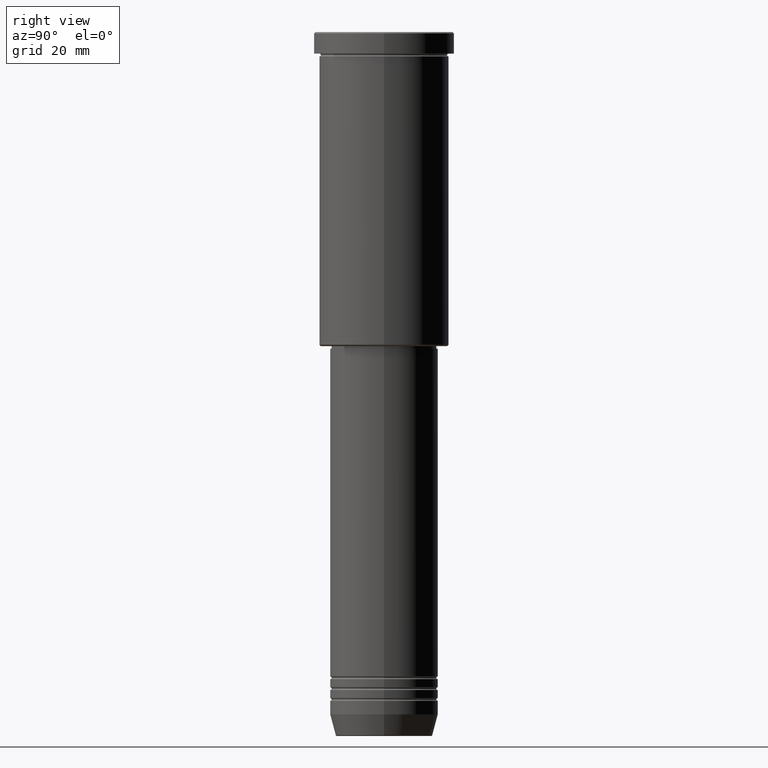
[diagram: clean part render]
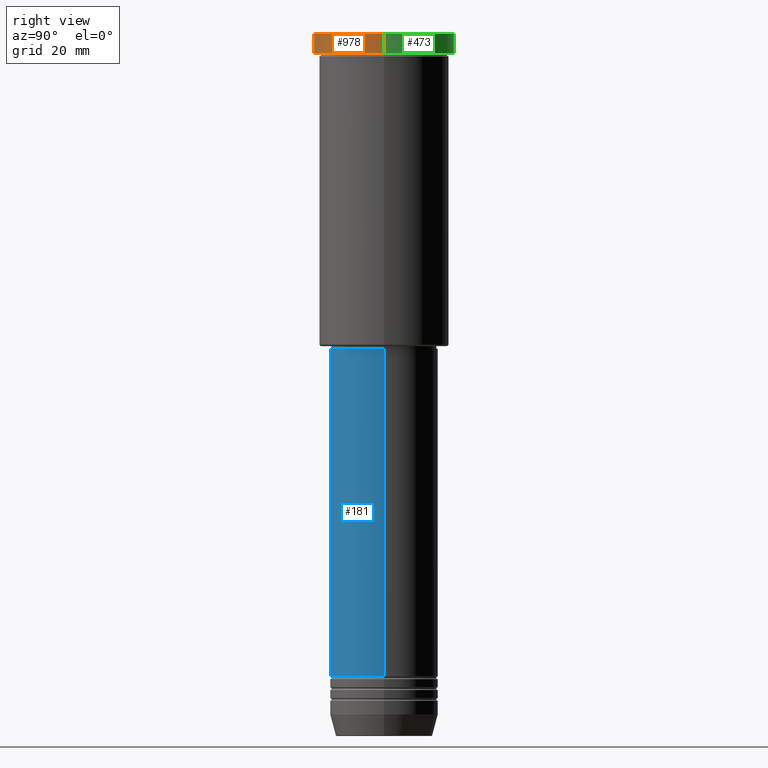
[diagram: same view with three faces highlighted in distinct colors, each labeled with its STEP entity id]
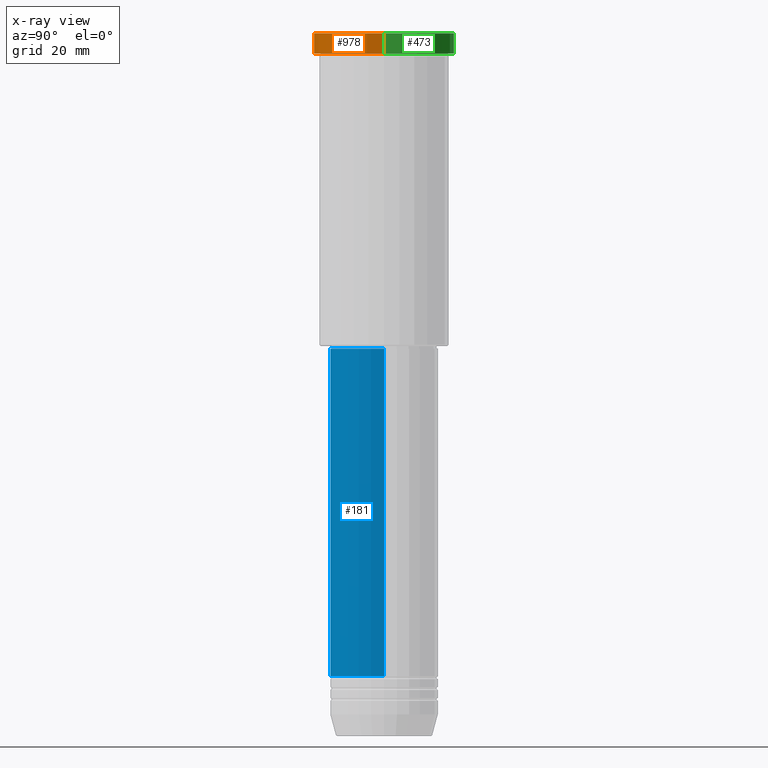
[diagram: x-ray of the same camera — body ghosted, the three highlighted faces saturated]
A machine part, right view with three faces highlighted in distinct colors.
The next image is the same camera in x-ray (body ghosted, the three faces saturated) — at least one of them is partly hidden behind the body in this view.
Their STEP definitions:

[orange] entity #978 — the highlighted cylindrical surface (partial cylindrical patch) has radius 26 mm, axis along (-0, -0, 1).
#15 = CARTESIAN_POINT ( 'NONE',  ( 26.00000000000000000, 0.000000000000000000, 0.000000000000000000 ) ) ;
#18 = VERTEX_POINT ( 'NONE', #1032 ) ;
#81 = DIRECTION ( 'NONE',  ( 1.000000000000000000, 0.000000000000000000, 0.000000000000000000 ) ) ;
#86 = CYLINDRICAL_SURFACE ( 'NONE', #883, 26.00000000000000000 ) ;
#174 = EDGE_CURVE ( 'NONE', #18, #776, #1148, .T. ) ;
#178 = CARTESIAN_POINT ( 'NONE',  ( -26.00000000000000000, 3.184081677783118191E-15, 0.000000000000000000 ) ) ;
#190 = EDGE_CURVE ( 'NONE', #465, #18, #293, .T. ) ;
#273 = DIRECTION ( 'NONE',  ( -0.000000000000000000, -0.000000000000000000, 1.000000000000000000 ) ) ;
#274 = VERTEX_POINT ( 'NONE', #1041 ) ;
#293 = LINE ( 'NONE', #15, #1136 ) ;
#355 = VECTOR ( 'NONE', #811, 1000.000000000000000 ) ;
#362 = EDGE_CURVE ( 'NONE', #274, #465, #863, .T. ) ;
#369 = CARTESIAN_POINT ( 'NONE',  ( 0.000000000000000000, 0.000000000000000000, -7.999999999999992895 ) ) ;
#371 = EDGE_LOOP ( 'NONE', ( #518, #1015, #1172, #423 ) ) ;
#423 = ORIENTED_EDGE ( 'NONE', *, *, #174, .T. ) ;
#440 = LINE ( 'NONE', #178, #355 ) ;
#465 = VERTEX_POINT ( 'NONE', #1003 ) ;
#518 = ORIENTED_EDGE ( 'NONE', *, *, #982, .F. ) ;
#535 = DIRECTION ( 'NONE',  ( -0.000000000000000000, -0.000000000000000000, 1.000000000000000000 ) ) ;
#608 = FACE_OUTER_BOUND ( 'NONE', #371, .T. ) ;
#656 = AXIS2_PLACEMENT_3D ( 'NONE', #793, #706, #1073 ) ;
#670 = CARTESIAN_POINT ( 'NONE',  ( -26.00000000000000000, 3.184081677783118191E-15, -0.5000000000000247580 ) ) ;
#706 = DIRECTION ( 'NONE',  ( 0.000000000000000000, 0.000000000000000000, -1.000000000000000000 ) ) ;
#755 = AXIS2_PLACEMENT_3D ( 'NONE', #369, #535, #819 ) ;
#776 = VERTEX_POINT ( 'NONE', #670 ) ;
#793 = CARTESIAN_POINT ( 'NONE',  ( 0.000000000000000000, 0.000000000000000000, -0.5000000000000247580 ) ) ;
#811 = DIRECTION ( 'NONE',  ( -0.000000000000000000, -0.000000000000000000, 1.000000000000000000 ) ) ;
#819 = DIRECTION ( 'NONE',  ( 1.000000000000000000, 0.000000000000000000, 0.000000000000000000 ) ) ;
#826 = CARTESIAN_POINT ( 'NONE',  ( 0.000000000000000000, 0.000000000000000000, 0.000000000000000000 ) ) ;
#863 = CIRCLE ( 'NONE', #755, 26.00000000000000000 ) ;
#883 = AXIS2_PLACEMENT_3D ( 'NONE', #826, #900, #81 ) ;
#900 = DIRECTION ( 'NONE',  ( -0.000000000000000000, -0.000000000000000000, 1.000000000000000000 ) ) ;
#978 = ADVANCED_FACE ( 'NONE', ( #608 ), #86, .T. ) ;
#982 = EDGE_CURVE ( 'NONE', #274, #776, #440, .T. ) ;
#1003 = CARTESIAN_POINT ( 'NONE',  ( 26.00000000000000000, 0.000000000000000000, -7.999999999999992895 ) ) ;
#1015 = ORIENTED_EDGE ( 'NONE', *, *, #362, .T. ) ;
#1032 = CARTESIAN_POINT ( 'NONE',  ( 26.00000000000000000, 0.000000000000000000, -0.5000000000000247580 ) ) ;
#1041 = CARTESIAN_POINT ( 'NONE',  ( -26.00000000000000000, 3.184081677783118191E-15, -7.999999999999992895 ) ) ;
#1073 = DIRECTION ( 'NONE',  ( 1.000000000000000000, 0.000000000000000000, 0.000000000000000000 ) ) ;
#1136 = VECTOR ( 'NONE', #273, 1000.000000000000000 ) ;
#1148 = CIRCLE ( 'NONE', #656, 26.00000000000000000 ) ;
#1172 = ORIENTED_EDGE ( 'NONE', *, *, #190, .T. ) ;

[blue] entity #181 — the highlighted cylindrical surface (partial cylindrical patch) has radius 20 mm, axis along (-0, -0, 1).
#29 = CARTESIAN_POINT ( 'NONE',  ( -20.00000000000000355, 2.449293598294706907E-15, -238.0000000000000000 ) ) ;
#132 = AXIS2_PLACEMENT_3D ( 'NONE', #196, #1145, #839 ) ;
#165 = AXIS2_PLACEMENT_3D ( 'NONE', #350, #729, #1098 ) ;
#166 = CIRCLE ( 'NONE', #817, 20.00000000000000355 ) ;
#179 = EDGE_CURVE ( 'NONE', #401, #809, #798, .T. ) ;
#181 = ADVANCED_FACE ( 'NONE', ( #1107 ), #814, .T. ) ;
#196 = CARTESIAN_POINT ( 'NONE',  ( 0.000000000000000000, 0.000000000000000000, -117.0000000000000142 ) ) ;
#236 = ORIENTED_EDGE ( 'NONE', *, *, #324, .T. ) ;
#257 = VECTOR ( 'NONE', #370, 1000.000000000000000 ) ;
#296 = DIRECTION ( 'NONE',  ( -0.000000000000000000, -0.000000000000000000, 1.000000000000000000 ) ) ;
#324 = EDGE_CURVE ( 'NONE', #401, #458, #166, .T. ) ;
#350 = CARTESIAN_POINT ( 'NONE',  ( 0.000000000000000000, 0.000000000000000000, 0.000000000000000000 ) ) ;
#353 = LINE ( 'NONE', #1102, #1059 ) ;
#370 = DIRECTION ( 'NONE',  ( -0.000000000000000000, -0.000000000000000000, 1.000000000000000000 ) ) ;
#399 = ORIENTED_EDGE ( 'NONE', *, *, #602, .T. ) ;
#400 = EDGE_CURVE ( 'NONE', #809, #927, #1058, .T. ) ;
#401 = VERTEX_POINT ( 'NONE', #29 ) ;
#443 = CARTESIAN_POINT ( 'NONE',  ( -20.00000000000000355, 2.449293598294706907E-15, 0.000000000000000000 ) ) ;
#458 = VERTEX_POINT ( 'NONE', #634 ) ;
#489 = CARTESIAN_POINT ( 'NONE',  ( 0.000000000000000000, 0.000000000000000000, -238.0000000000000000 ) ) ;
#602 = EDGE_CURVE ( 'NONE', #458, #927, #353, .T. ) ;
#634 = CARTESIAN_POINT ( 'NONE',  ( 20.00000000000000355, 0.000000000000000000, -238.0000000000000000 ) ) ;
#638 = CARTESIAN_POINT ( 'NONE',  ( 20.00000000000000355, 0.000000000000000000, -117.0000000000000142 ) ) ;
#685 = DIRECTION ( 'NONE',  ( 1.000000000000000000, 0.000000000000000000, 0.000000000000000000 ) ) ;
#729 = DIRECTION ( 'NONE',  ( -0.000000000000000000, -0.000000000000000000, 1.000000000000000000 ) ) ;
#796 = EDGE_LOOP ( 'NONE', ( #1108, #236, #399, #979 ) ) ;
#798 = LINE ( 'NONE', #443, #257 ) ;
#809 = VERTEX_POINT ( 'NONE', #909 ) ;
#814 = CYLINDRICAL_SURFACE ( 'NONE', #165, 20.00000000000000355 ) ;
#817 = AXIS2_PLACEMENT_3D ( 'NONE', #489, #861, #685 ) ;
#839 = DIRECTION ( 'NONE',  ( 1.000000000000000000, 0.000000000000000000, 0.000000000000000000 ) ) ;
#861 = DIRECTION ( 'NONE',  ( -0.000000000000000000, -0.000000000000000000, 1.000000000000000000 ) ) ;
#909 = CARTESIAN_POINT ( 'NONE',  ( -20.00000000000000355, 2.449293598294706907E-15, -117.0000000000000142 ) ) ;
#927 = VERTEX_POINT ( 'NONE', #638 ) ;
#979 = ORIENTED_EDGE ( 'NONE', *, *, #400, .F. ) ;
#1058 = CIRCLE ( 'NONE', #132, 20.00000000000000355 ) ;
#1059 = VECTOR ( 'NONE', #296, 1000.000000000000000 ) ;
#1098 = DIRECTION ( 'NONE',  ( 1.000000000000000000, 0.000000000000000000, 0.000000000000000000 ) ) ;
#1102 = CARTESIAN_POINT ( 'NONE',  ( 20.00000000000000355, 0.000000000000000000, 0.000000000000000000 ) ) ;
#1107 = FACE_OUTER_BOUND ( 'NONE', #796, .T. ) ;
#1108 = ORIENTED_EDGE ( 'NONE', *, *, #179, .F. ) ;
#1145 = DIRECTION ( 'NONE',  ( -0.000000000000000000, -0.000000000000000000, 1.000000000000000000 ) ) ;

[green] entity #473 — the highlighted cylindrical surface (partial cylindrical patch) has radius 26 mm, axis along (-0, -0, 1).
#15 = CARTESIAN_POINT ( 'NONE',  ( 26.00000000000000000, 0.000000000000000000, 0.000000000000000000 ) ) ;
#17 = CARTESIAN_POINT ( 'NONE',  ( 0.000000000000000000, 0.000000000000000000, -0.5000000000000247580 ) ) ;
#18 = VERTEX_POINT ( 'NONE', #1032 ) ;
#110 = EDGE_LOOP ( 'NONE', ( #648, #486, #616, #406 ) ) ;
#168 = CIRCLE ( 'NONE', #802, 26.00000000000000000 ) ;
#178 = CARTESIAN_POINT ( 'NONE',  ( -26.00000000000000000, 3.184081677783118191E-15, 0.000000000000000000 ) ) ;
#190 = EDGE_CURVE ( 'NONE', #465, #18, #293, .T. ) ;
#268 = CARTESIAN_POINT ( 'NONE',  ( 0.000000000000000000, 0.000000000000000000, -7.999999999999992895 ) ) ;
#273 = DIRECTION ( 'NONE',  ( -0.000000000000000000, -0.000000000000000000, 1.000000000000000000 ) ) ;
#274 = VERTEX_POINT ( 'NONE', #1041 ) ;
#293 = LINE ( 'NONE', #15, #1136 ) ;
#355 = VECTOR ( 'NONE', #811, 1000.000000000000000 ) ;
#375 = AXIS2_PLACEMENT_3D ( 'NONE', #268, #834, #830 ) ;
#406 = ORIENTED_EDGE ( 'NONE', *, *, #190, .F. ) ;
#440 = LINE ( 'NONE', #178, #355 ) ;
#465 = VERTEX_POINT ( 'NONE', #1003 ) ;
#473 = ADVANCED_FACE ( 'NONE', ( #933 ), #1030, .T. ) ;
#480 = DIRECTION ( 'NONE',  ( -0.000000000000000000, -0.000000000000000000, 1.000000000000000000 ) ) ;
#486 = ORIENTED_EDGE ( 'NONE', *, *, #982, .T. ) ;
#556 = DIRECTION ( 'NONE',  ( 0.000000000000000000, 0.000000000000000000, -1.000000000000000000 ) ) ;
#616 = ORIENTED_EDGE ( 'NONE', *, *, #683, .T. ) ;
#622 = EDGE_CURVE ( 'NONE', #465, #274, #1138, .T. ) ;
#648 = ORIENTED_EDGE ( 'NONE', *, *, #622, .T. ) ;
#659 = AXIS2_PLACEMENT_3D ( 'NONE', #945, #480, #851 ) ;
#670 = CARTESIAN_POINT ( 'NONE',  ( -26.00000000000000000, 3.184081677783118191E-15, -0.5000000000000247580 ) ) ;
#683 = EDGE_CURVE ( 'NONE', #776, #18, #168, .T. ) ;
#776 = VERTEX_POINT ( 'NONE', #670 ) ;
#802 = AXIS2_PLACEMENT_3D ( 'NONE', #17, #556, #928 ) ;
#811 = DIRECTION ( 'NONE',  ( -0.000000000000000000, -0.000000000000000000, 1.000000000000000000 ) ) ;
#830 = DIRECTION ( 'NONE',  ( 1.000000000000000000, 0.000000000000000000, 0.000000000000000000 ) ) ;
#834 = DIRECTION ( 'NONE',  ( -0.000000000000000000, -0.000000000000000000, 1.000000000000000000 ) ) ;
#851 = DIRECTION ( 'NONE',  ( 1.000000000000000000, 0.000000000000000000, 0.000000000000000000 ) ) ;
#928 = DIRECTION ( 'NONE',  ( 1.000000000000000000, 0.000000000000000000, 0.000000000000000000 ) ) ;
#933 = FACE_OUTER_BOUND ( 'NONE', #110, .T. ) ;
#945 = CARTESIAN_POINT ( 'NONE',  ( 0.000000000000000000, 0.000000000000000000, 0.000000000000000000 ) ) ;
#982 = EDGE_CURVE ( 'NONE', #274, #776, #440, .T. ) ;
#1003 = CARTESIAN_POINT ( 'NONE',  ( 26.00000000000000000, 0.000000000000000000, -7.999999999999992895 ) ) ;
#1030 = CYLINDRICAL_SURFACE ( 'NONE', #659, 26.00000000000000000 ) ;
#1032 = CARTESIAN_POINT ( 'NONE',  ( 26.00000000000000000, 0.000000000000000000, -0.5000000000000247580 ) ) ;
#1041 = CARTESIAN_POINT ( 'NONE',  ( -26.00000000000000000, 3.184081677783118191E-15, -7.999999999999992895 ) ) ;
#1136 = VECTOR ( 'NONE', #273, 1000.000000000000000 ) ;
#1138 = CIRCLE ( 'NONE', #375, 26.00000000000000000 ) ;